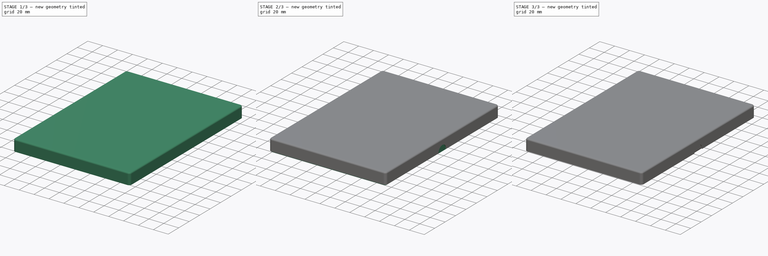
[diagram: build sequence overview — one tinted view per stage of 3, left to right]
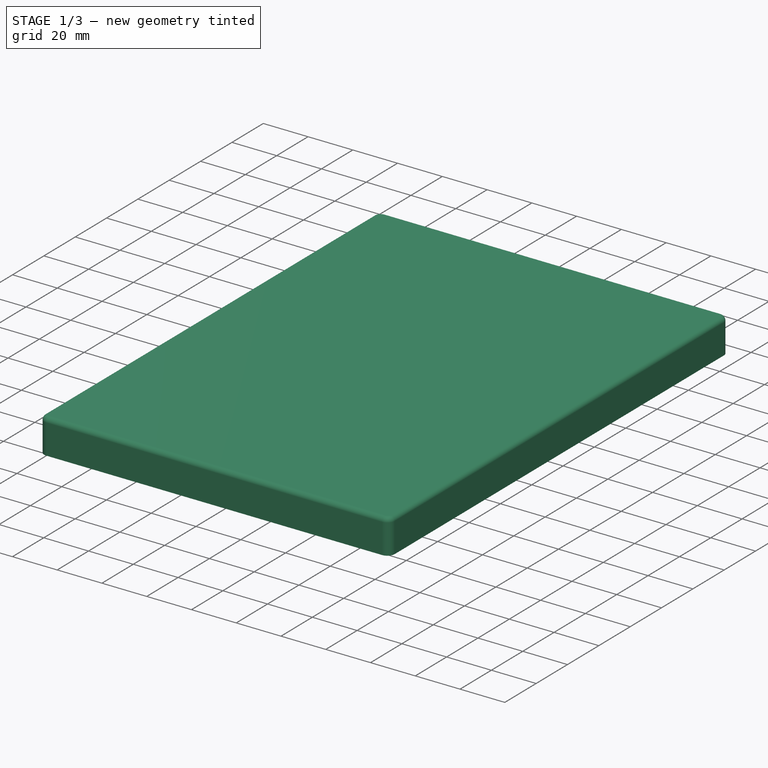
[diagram: stage 1 of 3 — iso view after this stage's code; geometry added in this stage tinted green]
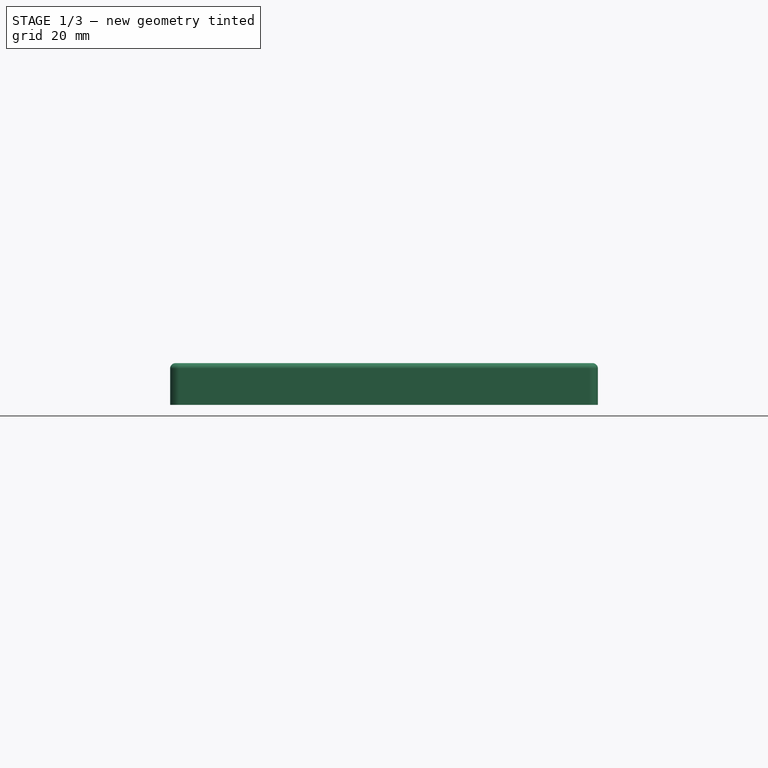
[diagram: stage 1 of 3 — front view after this stage's code; geometry added in this stage tinted green]
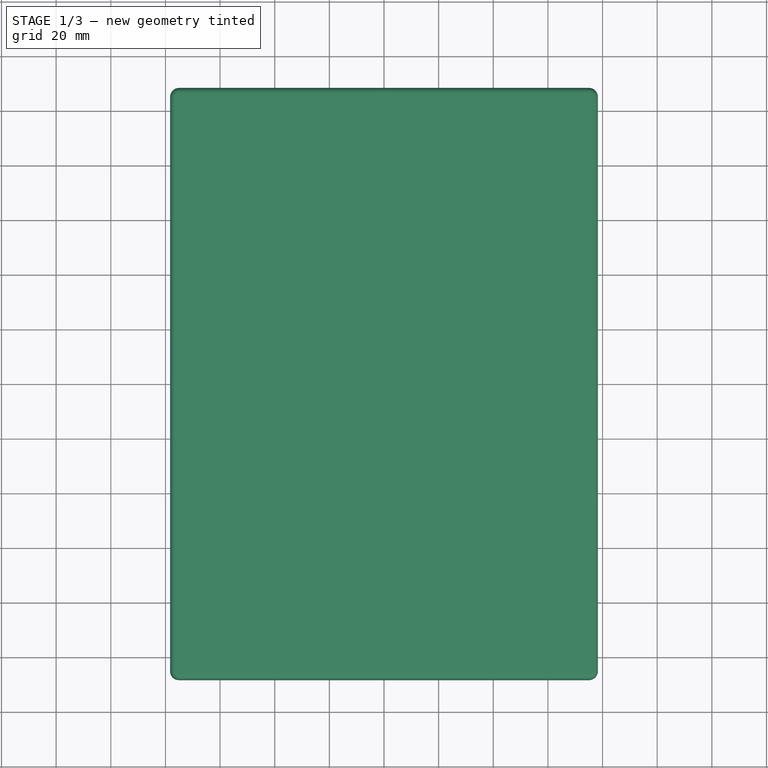
[diagram: stage 1 of 3 — top view after this stage's code; geometry added in this stage tinted green]
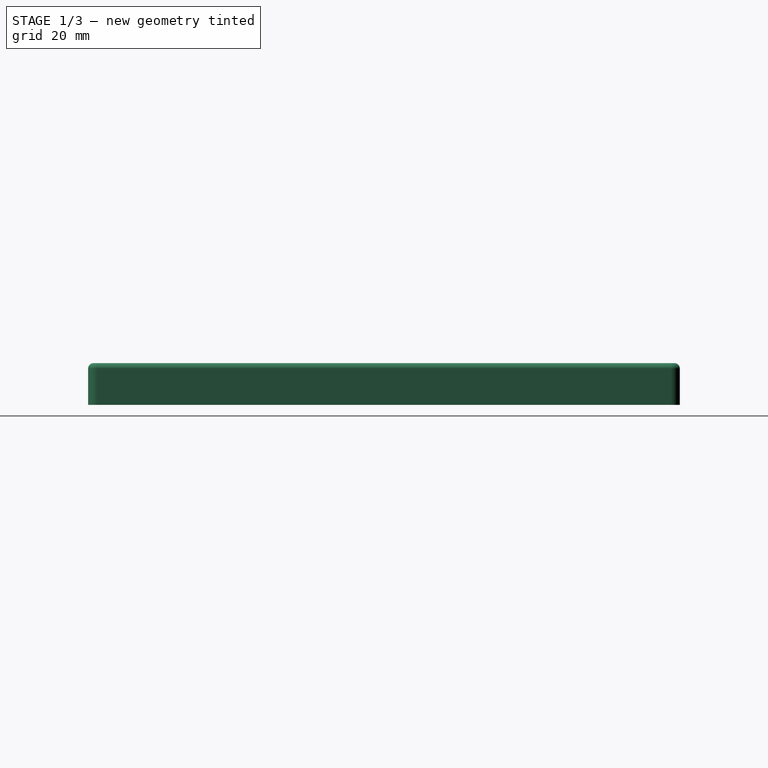
[diagram: stage 1 of 3 — right view after this stage's code; geometry added in this stage tinted green]
FCSTD DOCUMENT  (FreeCAD 1.0R39319 (Git))
Label: bookbox
License: All rights reserved
LicenseURL: https://en.wikipedia.org/wiki/All_rights_reserved
objects: Sketcher::SketchObject×3, PartDesign::Pad×2, PartDesign::Fillet×2, PartDesign::Thickness×2, PartDesign::Body×2, Measure::MeasureDistance×2, Spreadsheet::Sheet×1, PartDesign::Plane×1, PartDesign::Pocket×1, App::DocumentObjectGroup×1, Measure::MeasurePython×1
note: 30 computed .brp shape members not serialized (recipe doc carries the construction recipe); baked Part::Feature solids carry a one-line shape summary decoded from their .brp

FEATURE [PartDesign::Body] Body  label="BoxBottom"
  AllowCompound = false
  Group = -> [Sketch,Pad,Fillet,Thickness]
  Origin = -> Origin
  Tip = -> Thickness
FEATURE [PartDesign::Plane] DatumPlane  label="TopPlane"
  AttachmentOffset = pos=(0,0,16.4) rot=(0,0,1;0rad)
  AttachmentSupport = -> [XY_Plane001]
  Length = 193.435
  MapMode = 5
  Placement = pos=(0,0,16.4) rot=(0,0,1;0rad)
  ResizeMode = 0
  Width = 253.435
  expr: .AttachmentOffset.Base.z = Spreadsheet.TopShellPlaneOfsZ
FEATURE [Sketcher::SketchObject] Sketch001
  ArcFitTolerance = 1e-06
  AttachmentSupport = -> [DatumPlane]
  FullyConstrained = true
  MakeInternals = false
  MapMode = 5
  Placement = pos=(0,0,16.4) rot=(0,0,1;0rad)
  expr: Constraints[24] = Spreadsheet.TopShellFill
  expr: Constraints[6] = Spreadsheet.TopShellWid
  expr: Constraints[7] = Spreadsheet.TopShellDep
  sketch-geometry (13):
    g0: LineSegment StartX=-78.3 StartY=105 StartZ=0 EndX=-78.3 EndY=-105 EndZ=0
    g1: LineSegment StartX=-75 StartY=-108.3 StartZ=0 EndX=75 EndY=-108.3 EndZ=0
    g2: LineSegment StartX=78.3 StartY=-105 StartZ=0 EndX=78.3 EndY=105 EndZ=0
    g3: LineSegment StartX=75 StartY=108.3 StartZ=0 EndX=-75 EndY=108.3 EndZ=0
    g4: GeomPoint [constr] X=0 Y=0 Z=0
    g5: ArcOfCircle CenterX=-75 CenterY=105 CenterZ=0 NormalX=0 NormalY=0 NormalZ=1 AngleXU=0 Radius=3.3 StartAngle=1.5708 EndAngle=3.14159
    g6: GeomPoint [constr] X=-78.3 Y=108.3 Z=0
    g7: ArcOfCircle CenterX=75 CenterY=105 CenterZ=0 NormalX=0 NormalY=0 NormalZ=1 AngleXU=0 Radius=3.3 StartAngle=-1.8e-15 EndAngle=1.5708
    g8: GeomPoint [constr] X=78.3 Y=108.3 Z=0
    g9: ArcOfCircle CenterX=75 CenterY=-105 CenterZ=0 NormalX=0 NormalY=0 NormalZ=1 AngleXU=0 Radius=3.3 StartAngle=4.71239 EndAngle=6.28319
    g10: GeomPoint [constr] X=78.3 Y=-108.3 Z=0
    g11: ArcOfCircle CenterX=-75 CenterY=-105 CenterZ=0 NormalX=0 NormalY=0 NormalZ=1 AngleXU=0 Radius=3.3 StartAngle=3.14159 EndAngle=4.71239
    g12: GeomPoint [constr] X=-78.3 Y=-108.3 Z=0
  constraints (28):
    c: Vertical(g0)
    c: Vertical(g2)
    c: Horizontal(g1)
    c: Horizontal(g3)
    c: Symmetric(g10,g6,g4)
    c: Coincident(g4,g-1)
    c: DistanceX(g12,g10) = 156.6
    c: DistanceY(g12,g6) = 216.6
    c: PointOnObject(g6,g3)
    c: PointOnObject(g6,g0)
    c: Tangent(g3,g5) = -1.5708
    c: Tangent(g0,g5) = -1.5708
    c: PointOnObject(g8,g2)
    c: PointOnObject(g8,g3)
    c: Tangent(g2,g7) = -1.5708
    c: Tangent(g3,g7) = -1.5708
    c: PointOnObject(g10,g2)
    c: PointOnObject(g10,g1)
    c: Tangent(g2,g9) = -1.5708
    c: Tangent(g1,g9) = -1.5708
    c: PointOnObject(g12,g1)
    c: PointOnObject(g12,g0)
    c: Tangent(g1,g11) = -1.5708
    c: Tangent(g0,g11) = -1.5708
    c: DistanceY(g12,g0) = 3.3
    c: Vertical(g11,g5)
    c: Horizontal(g11,g9)
    c: Vertical(g9,g7)
FEATURE [PartDesign::Pad] Pad001  label="TopBody"
  Direction = (0,0,1)
  Length = 15.3
  Length2 = 10
  Placement = pos=(0,0,16.4) rot=(0,0,1;0rad)
  Profile = -> Sketch001
  ReferenceAxis = -> Sketch001 [N_Axis]
  Refine = true
  Reversed = true
  Suppressed = false
  Type = 0
  expr: Length = Spreadsheet.TopShellHei
FEATURE [PartDesign::Fillet] Fillet001  label="TopFillet"
  Base = -> Pad001 [Edge3]
  BaseFeature = -> Pad001
  Placement = pos=(0,0,16.4) rot=(0,0,1;0rad)
  Radius = 2
  Refine = true
  SupportTransform = false
  Suppressed = false
  UseAllEdges = false
  expr: Radius = Spreadsheet.BoxWallFil
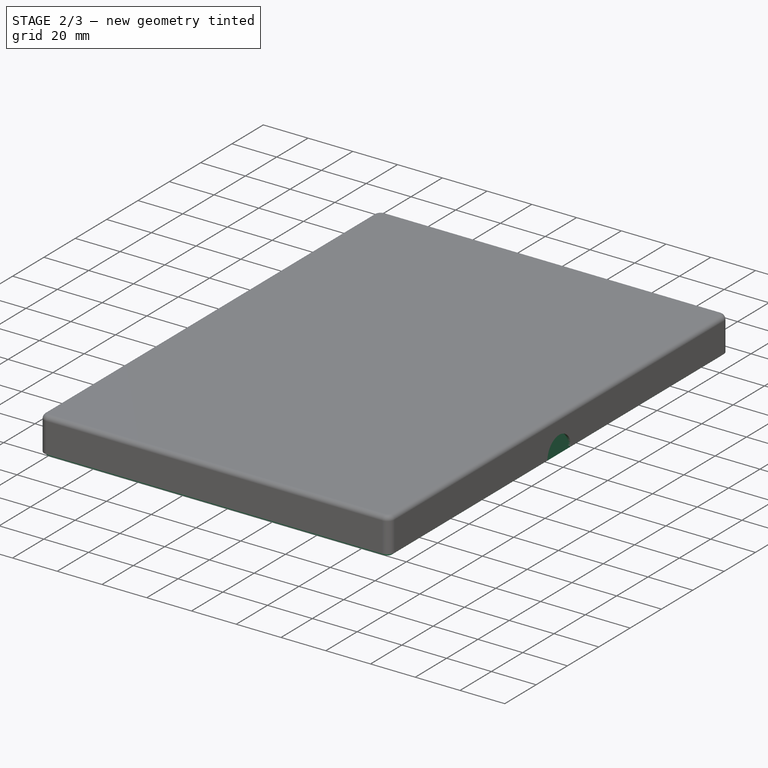
[diagram: stage 2 of 3 — iso view after this stage's code; geometry added in this stage tinted green]
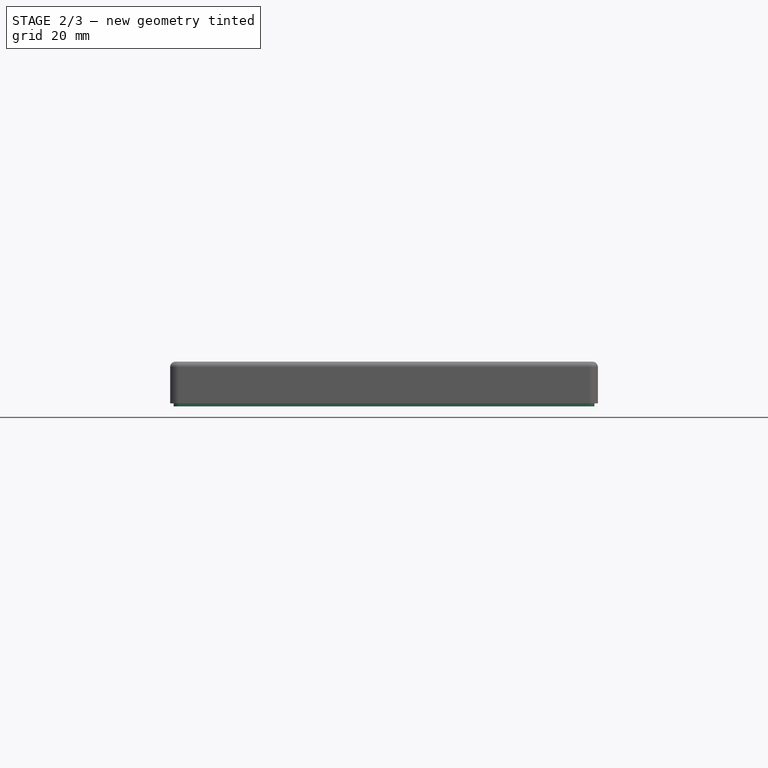
[diagram: stage 2 of 3 — front view after this stage's code; geometry added in this stage tinted green]
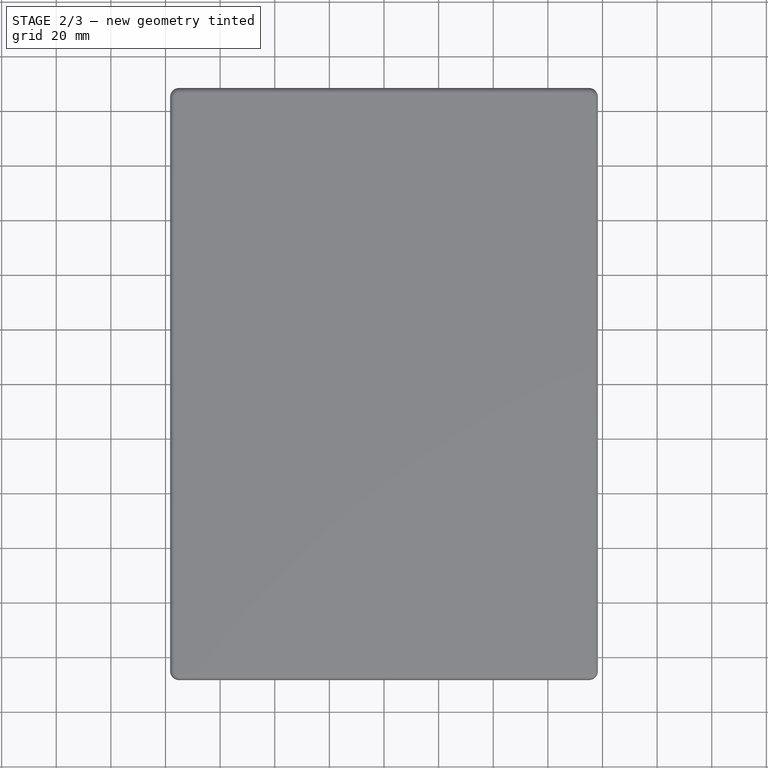
[diagram: stage 2 of 3 — top view after this stage's code; geometry added in this stage tinted green]
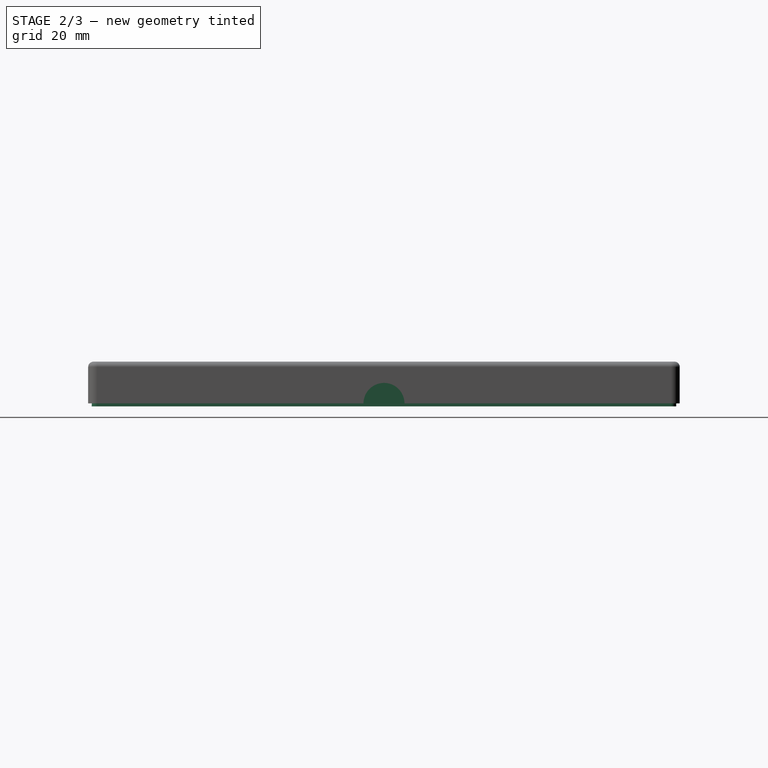
[diagram: stage 2 of 3 — right view after this stage's code; geometry added in this stage tinted green]
FEATURE [Spreadsheet::Sheet] Spreadsheet
  cells = A1='Book Height; B1(BookHei)=210; C1='Box Wall thickness; D1(BoxWallThi)=1.2; E1='Box Shell spacing; F1(BoxShellSpa)=0.1; G1='Finger Cut dia; H1(FingerCutDia)=15; A2='Book Width; B2(BookWid)=150; C2='Box Wall fillet; D2(BoxWallFil)=2; A3='Book depth; B3(BookDep)=10; A4='Book spacing; B4(BookSpace)=2; A8='box bottom shell height; B8(BottomShellHei)==BookDep + BookSpace * 2; A9='box bottom shell width; B9(BottomShellWid)==BookWid + BookSpace * 2; A10='box bottom shell depth; B10(BottomShellDep)==BookHei + BookSpace * 2; A11='box top shell plane offset; B11(TopShellPlaneOfsZ)==BookDep + BookSpace * 2 + BoxWallThi * 2; A12='box top shell height; B12(TopShellHei)==BottomShellHei + BoxShellSpa + BoxWallThi; A13='box top shell width; B13(TopShellWid)==BottomShellWid + BoxShellSpa * 2 + BoxWallThi * 2; A14='box top shell depth; B14(TopShellDep)==BottomShellDep + BoxShellSpa * 2 + BoxWallThi * 2; A15='Bot top shell fillet; B15(TopShellFill)==BoxWallFil + BoxShellSpa + BoxWallThi
FEATURE [Sketcher::SketchObject] Sketch
  ArcFitTolerance = 1e-06
  AttachmentSupport = -> [XY_Plane]
  FullyConstrained = true
  MakeInternals = false
  MapMode = 5
  expr: Constraints[22] = Spreadsheet.BottomShellWid
  expr: Constraints[23] = Spreadsheet.BottomShellDep
  expr: Constraints[24] = Spreadsheet.BoxWallFil
  sketch-geometry (13):
    g0: LineSegment StartX=-77 StartY=105 StartZ=0 EndX=-77 EndY=-105 EndZ=0
    g1: LineSegment StartX=-75 StartY=-107 StartZ=0 EndX=75 EndY=-107 EndZ=0
    g2: LineSegment StartX=77 StartY=-105 StartZ=0 EndX=77 EndY=105 EndZ=0
    g3: LineSegment StartX=75 StartY=107 StartZ=0 EndX=-75 EndY=107 EndZ=0
    g4: GeomPoint [constr] X=0 Y=0 Z=0
    g5: ArcOfCircle CenterX=-75 CenterY=105 CenterZ=0 NormalX=0 NormalY=0 NormalZ=1 AngleXU=0 Radius=2 StartAngle=1.5708 EndAngle=3.14159
    g6: GeomPoint [constr] X=-77 Y=107 Z=0
    g7: ArcOfCircle CenterX=75 CenterY=105 CenterZ=0 NormalX=0 NormalY=0 NormalZ=1 AngleXU=0 Radius=2 StartAngle=-3.189e-13 EndAngle=1.5708
    g8: GeomPoint [constr] X=77 Y=107 Z=0
    g9: ArcOfCircle CenterX=75 CenterY=-105 CenterZ=0 NormalX=0 NormalY=0 NormalZ=1 AngleXU=0 Radius=2 StartAngle=4.71239 EndAngle=6.28319
    g10: GeomPoint [constr] X=77 Y=-107 Z=0
    g11: ArcOfCircle CenterX=-75 CenterY=-105 CenterZ=0 NormalX=0 NormalY=0 NormalZ=1 AngleXU=0 Radius=2 StartAngle=3.14159 EndAngle=4.71239
    g12: GeomPoint [constr] X=-77 Y=-107 Z=0
  constraints (28):
    c: Vertical(g0)
    c: Vertical(g2)
    c: Horizontal(g1)
    c: Horizontal(g3)
    c: Symmetric(g10,g6,g4)
    c: Coincident(g4,g-1)
    c: PointOnObject(g6,g0)
    c: PointOnObject(g6,g3)
    c: Tangent(g0,g5) = -1.5708
    c: Tangent(g3,g5) = -1.5708
    c: PointOnObject(g8,g3)
    c: PointOnObject(g8,g2)
    c: Tangent(g3,g7) = -1.5708
    c: Tangent(g2,g7) = -1.5708
    c: PointOnObject(g10,g2)
    c: PointOnObject(g10,g1)
    c: Tangent(g2,g9) = -1.5708
    c: Tangent(g1,g9) = -1.5708
    c: PointOnObject(g12,g1)
    c: PointOnObject(g12,g0)
    c: Tangent(g1,g11) = -1.5708
    c: Tangent(g0,g11) = -1.5708
    c: DistanceX(g12,g10) = 154
    c: DistanceY(g12,g6) = 214
    c: DistanceY(g12,g0) = 2
    c: Horizontal(g11,g9)
    c: Vertical(g11,g5)
    c: Vertical(g9,g7)
FEATURE [PartDesign::Pad] Pad  label="BottomBody"
  Direction = (0,0,1)
  Length = 14
  Length2 = 10
  Profile = -> Sketch
  ReferenceAxis = -> Sketch [N_Axis]
  Refine = true
  Suppressed = false
  Type = 0
  expr: Length = Spreadsheet.BottomShellHei
FEATURE [PartDesign::Thickness] Thickness001  label="TopCutout"
  Base = -> Fillet001 [Face4]
  BaseFeature = -> Fillet001
  Intersection = false
  Join = 0
  Mode = 0
  Refine = true
  Reversed = true
  SupportTransform = false
  Suppressed = false
  Value = 1.2
  expr: Value = Spreadsheet.BoxWallThi
FEATURE [Sketcher::SketchObject] Sketch002
  ArcFitTolerance = 1e-06
  AttachmentSupport = -> [Thickness001]
  ExternalGeometry = -> [Thickness001]
  FullyConstrained = true
  MakeInternals = false
  MapMode = 5
  Placement = pos=(78.3,0,0) rot=(0.57735,0.57735,0.57735;2.0944rad)
  expr: Constraints[6] = Spreadsheet.FingerCutDia
  sketch-geometry (2):
    g0: ArcOfCircle CenterX=0 CenterY=1.1 CenterZ=0 NormalX=0 NormalY=0 NormalZ=1 AngleXU=0 Radius=7.5 StartAngle=0 EndAngle=3.14159
    g1: LineSegment StartX=-7.5 StartY=1.1 StartZ=0 EndX=7.5 EndY=1.1 EndZ=0
  constraints (7):
    c: PointOnObject(g0,g-3)
    c: PointOnObject(g0,g-2)
    c: PointOnObject(g0,g-3)
    c: PointOnObject(g0,g-3)
    c: Coincident(g1,g0)
    c: Coincident(g1,g0)
    c: DistanceX(g1,g1) = 15
FEATURE [PartDesign::Pocket] Pocket
  BaseFeature = -> Thickness001
  Direction = (-1,0,0)
  Length = 5
  Length2 = 5
  Profile = -> Sketch002
  ReferenceAxis = -> Sketch002 [N_Axis]
  Refine = true
  Suppressed = false
  Type = 1
FEATURE [PartDesign::Body] Body001  label="BoxTop"
  AllowCompound = false
  Group = -> [DatumPlane,Sketch001,Pad001,Fillet001,Thickness001,Sketch002,Pocket]
  Origin = -> Origin001
  Tip = -> Pocket
FEATURE [Measure::MeasureDistance] Distance  label="Distance: 151.60 mm"
  Distance = 151.6
  DistanceX = 151.6
  DistanceY = 5.258e-13
  DistanceZ = 0
  Element1 = -> Body [Thickness.Vertex25]
  Element2 = -> Body [Thickness.Vertex22]
  Position1 = (75.8,105,14)
  Position2 = (-75.8,105,14)
FEATURE [Measure::MeasureDistance] Distance001  label="Distance001: 211.60 mm"
  Distance = 211.6
  DistanceX = 2.84e-14
  DistanceY = 211.6
  DistanceZ = 0
  Element1 = -> Body [Thickness.Vertex24]
  Element2 = -> Body [Thickness.Vertex27]
  Position1 = (75,105.8,14)
  Position2 = (75,-105.8,14)
FEATURE [App::DocumentObjectGroup] Measurements
  Group = -> [Distance,Distance001]
FEATURE [Measure::MeasurePython] Center_of_Mass  label="Center_of_Mass: COM
X: 0.00 mm
Y: 0.00 mm
Z: 14.02 mm"  # WARN: FeaturePython — macro-defined, semantics opaque (R4)
  Element = -> Body001
  Placement = pos=(2.776e-13,3.419e-13,14.0234) rot=(0,0,1;0rad)
  Result = (2.776e-13,3.419e-13,14.0234)
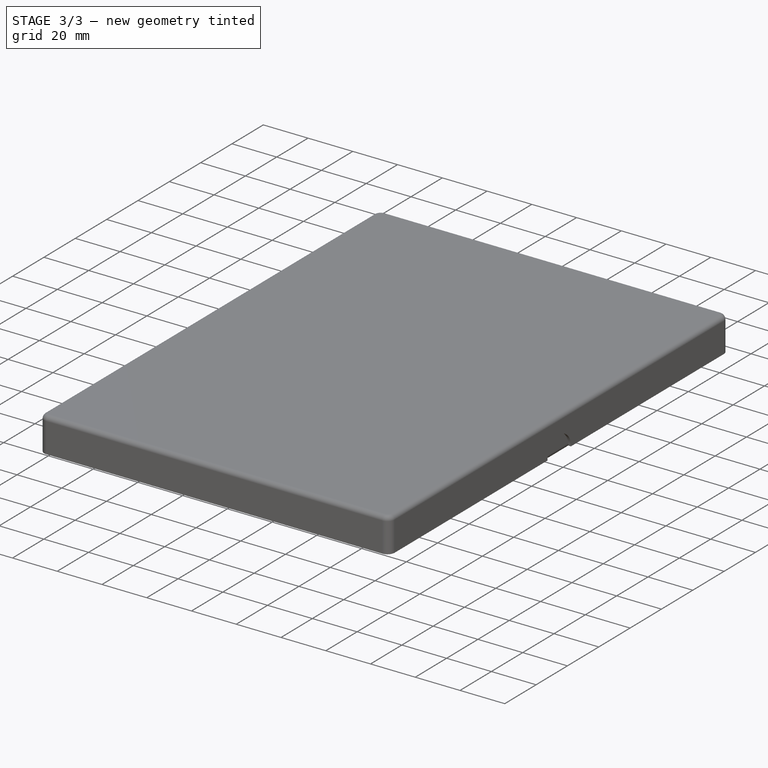
[diagram: stage 3 of 3 — iso view after this stage's code; geometry added in this stage tinted green]
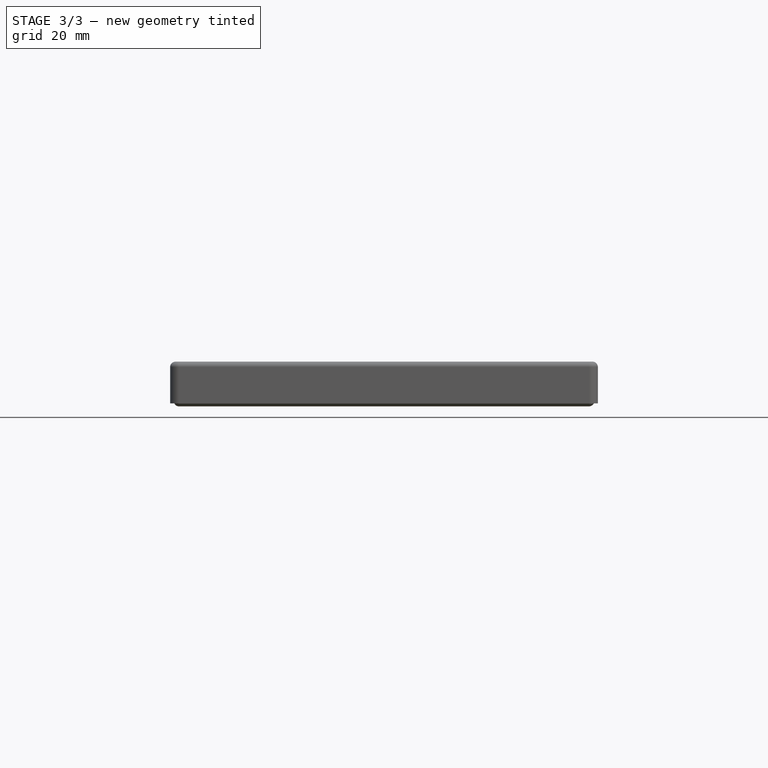
[diagram: stage 3 of 3 — front view after this stage's code; geometry added in this stage tinted green]
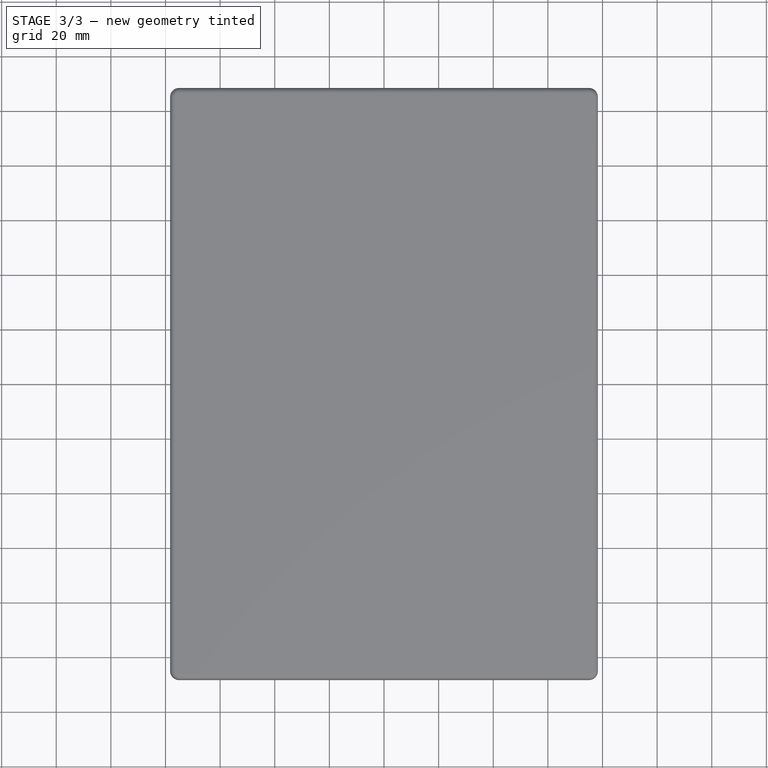
[diagram: stage 3 of 3 — top view after this stage's code; geometry added in this stage tinted green]
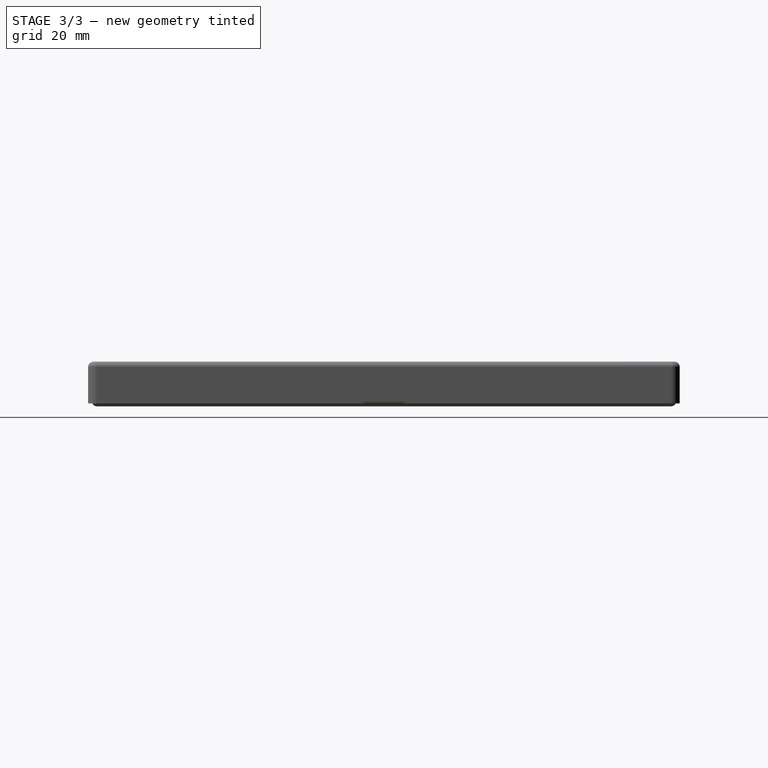
[diagram: stage 3 of 3 — right view after this stage's code; geometry added in this stage tinted green]
FEATURE [PartDesign::Fillet] Fillet  label="BottomFillet"
  Base = -> Pad [Edge3]
  BaseFeature = -> Pad
  Radius = 2
  Refine = true
  SupportTransform = false
  Suppressed = false
  UseAllEdges = false
  expr: Radius = Spreadsheet.BoxWallFil
FEATURE [PartDesign::Thickness] Thickness  label="BottomCutout"
  Base = -> Fillet [Face4]
  BaseFeature = -> Fillet
  Intersection = false
  Join = 0
  Mode = 0
  Refine = true
  Reversed = true
  SupportTransform = false
  Suppressed = false
  Value = 1.2
  expr: Value = Spreadsheet.BoxWallThi
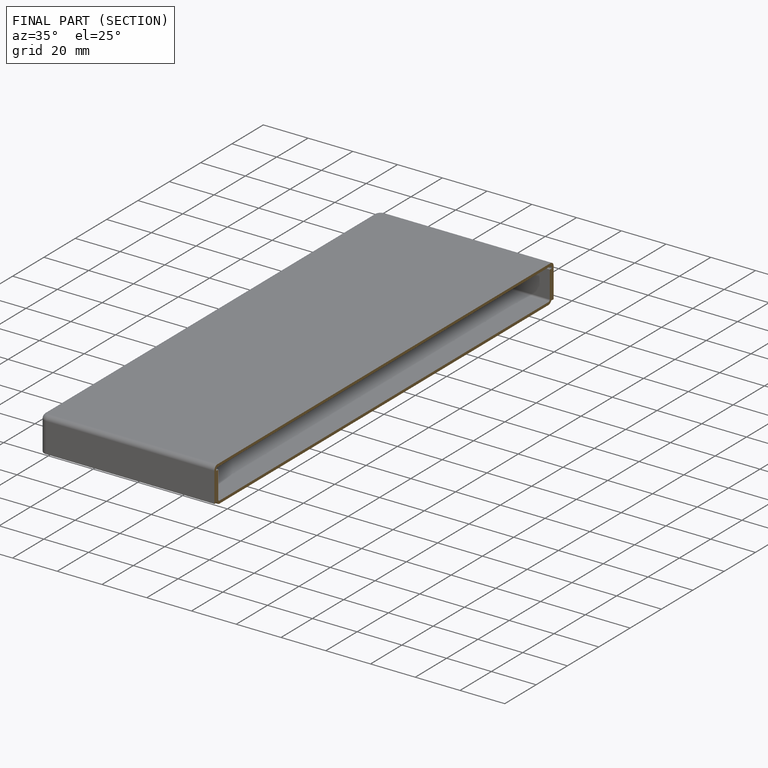
[diagram: finished part — half-section view (interior)]
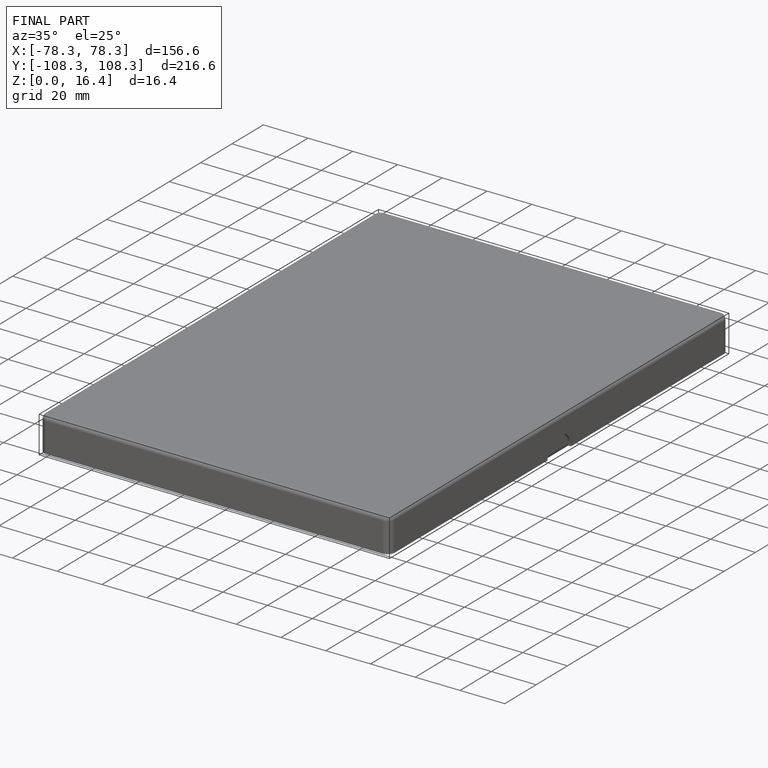
[diagram: finished part — iso view with bounding-box wireframe]
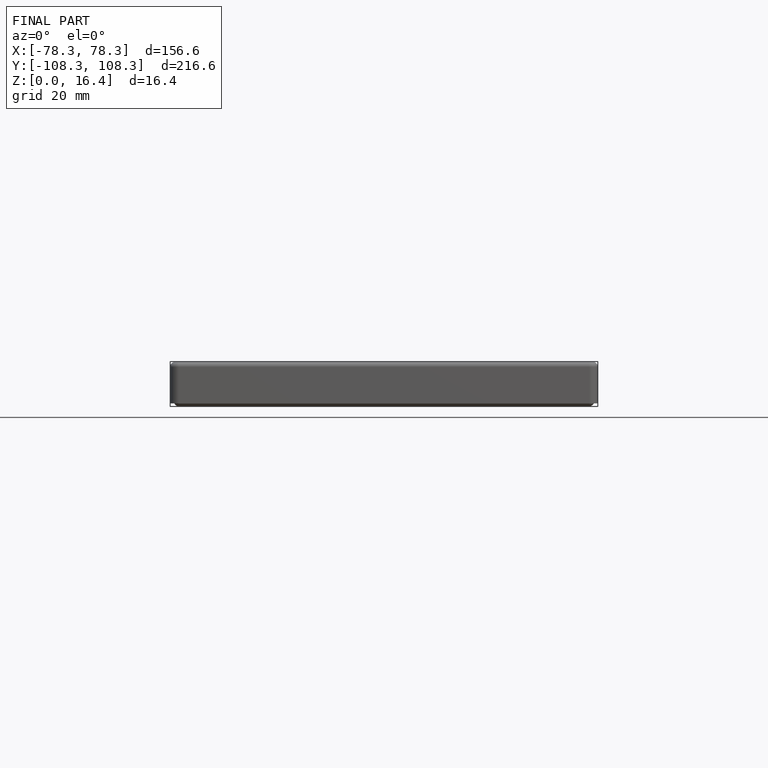
[diagram: finished part — front view with bounding-box wireframe]
